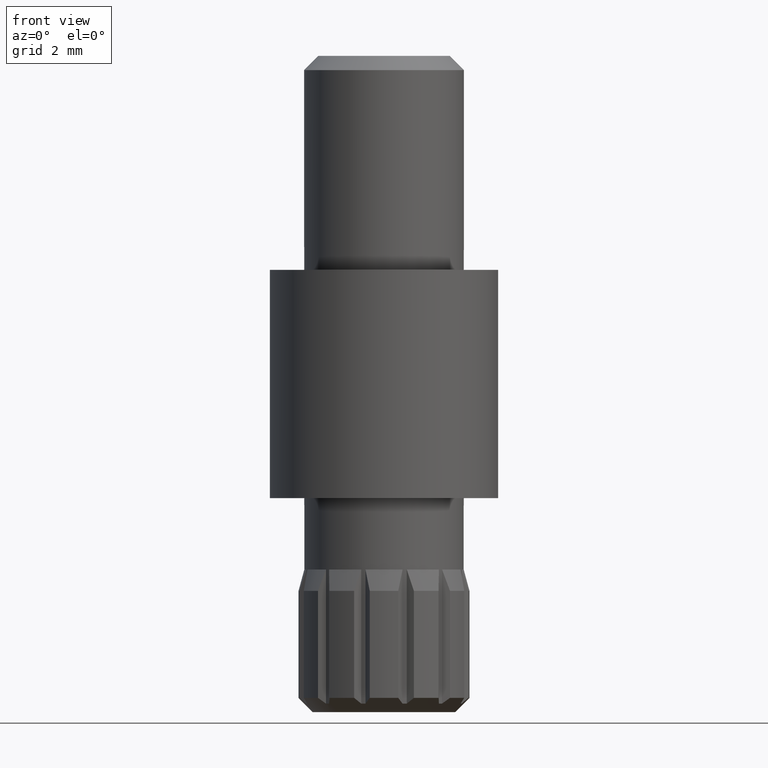
[diagram: clean part render]
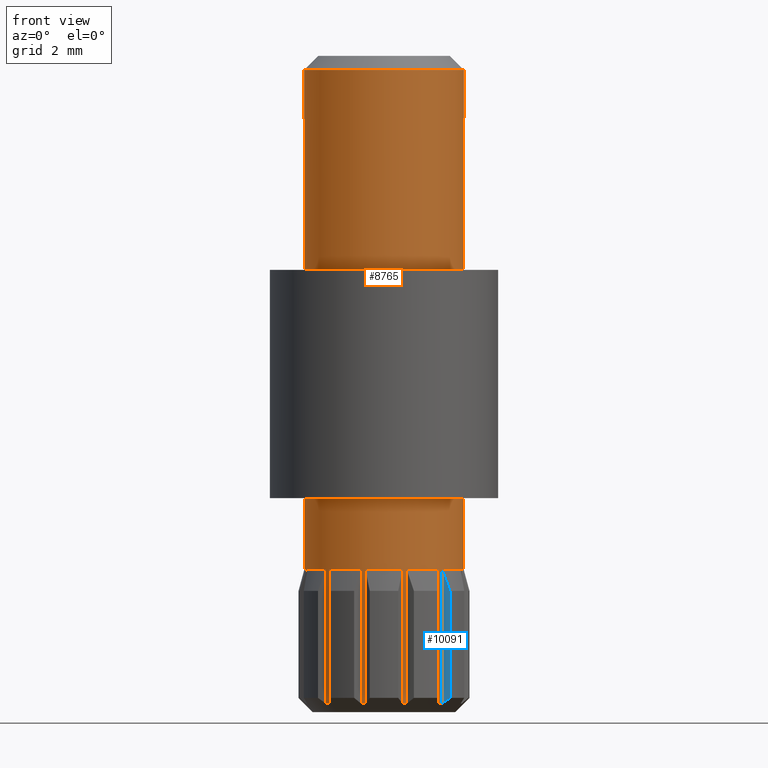
[diagram: same view with the hole feature highlighted: cylindrical wall and planar end face, labeled with their STEP entity ids]
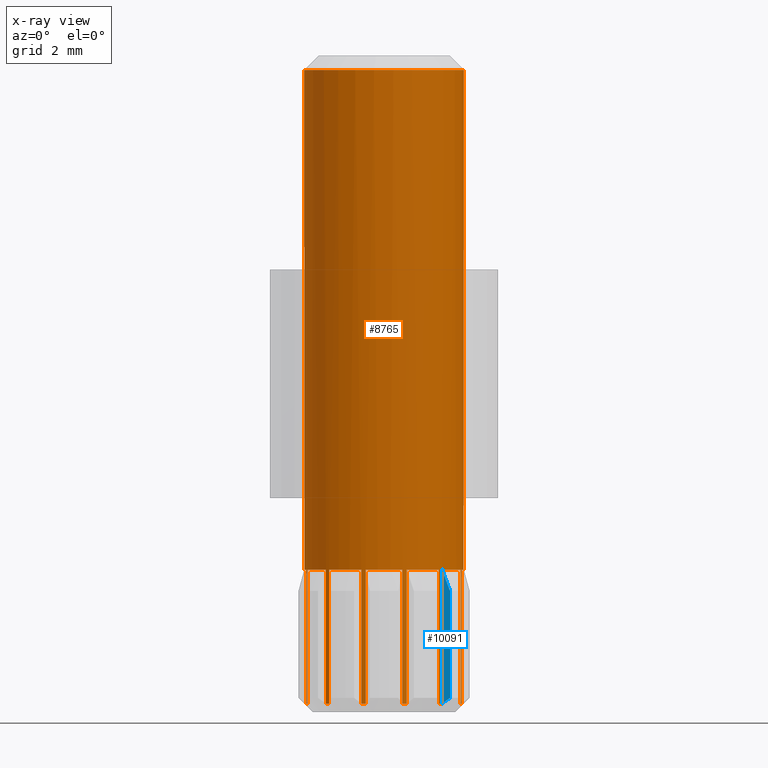
[diagram: x-ray of the same camera — body ghosted, the hole faces saturated]
A machine part, front view. The highlighted faces form one hole feature of diameter 5.6 mm: the cylindrical wall (entity #8765, orange) and its adjacent planar end face (entity #10091, blue) — they share a circular edge in the B-rep.
The next image is the same camera in x-ray (body ghosted, the hole faces saturated) — the bore reads through the body.
Wall:
#1 = DIRECTION ( 'NONE',  ( 0.000000000000000000, 0.000000000000000000, -1.000000000000000000 ) ) ;
#67 = CIRCLE ( 'NONE', #4636, 2.800000000000000266 ) ;
#89 = CIRCLE ( 'NONE', #7085, 2.799999999999999822 ) ;
#91 = CARTESIAN_POINT ( 'NONE',  ( 2.033627779027463056, 1.924670895599512654, 0.2999999999999999334 ) ) ;
#99 = EDGE_CURVE ( 'NONE', #7719, #5353, #12352, .T. ) ;
#157 = EDGE_CURVE ( 'NONE', #7042, #8808, #8983, .T. ) ;
#220 = VERTEX_POINT ( 'NONE', #11610 ) ;
#229 = CARTESIAN_POINT ( 'NONE',  ( 2.723508766279262083, -0.6500000000000094591, 5.000000000000000000 ) ) ;
#250 = EDGE_CURVE ( 'NONE', #10229, #11445, #11405, .T. ) ;
#261 = VECTOR ( 'NONE', #2143, 1000.000000000000000 ) ;
#323 = DIRECTION ( 'NONE',  ( 0.000000000000000000, 0.000000000000000000, -1.000000000000000000 ) ) ;
#375 = EDGE_CURVE ( 'NONE', #5924, #1440, #1109, .T. ) ;
#419 = CARTESIAN_POINT ( 'NONE',  ( 0.000000000000000000, 0.000000000000000000, 0.2999999999999996003 ) ) ;
#421 = EDGE_LOOP ( 'NONE', ( #3084, #4046, #4023, #8956, #8228, #3038, #11556, #12457, #7675, #3851, #4626, #10936, #937, #11867, #8384, #12649, #2769, #12290, #5379, #3086, #4774, #3941, #5714, #10811, #9722, #11007, #6330, #3877, #740, #12470, #4002, #1245, #9878, #6591, #10893, #12338, #2939, #3257, #6166, #2324, #8314, #5221, #7893, #1391, #2811, #6482, #5609, #669 ) ) ;
#493 = VECTOR ( 'NONE', #4657, 1000.000000000000000 ) ;
#543 = CARTESIAN_POINT ( 'NONE',  ( 2.033627779027462612, 1.924670895599512432, 5.000000000000000888 ) ) ;
#590 = CARTESIAN_POINT ( 'NONE',  ( 0.000000000000000000, 0.000000000000000000, 5.000000000000000000 ) ) ;
#620 = DIRECTION ( 'NONE',  ( 0.000000000000000000, 0.000000000000000000, -1.000000000000000000 ) ) ;
#634 = CARTESIAN_POINT ( 'NONE',  ( 2.723508766279266524, 0.6499999999999904743, 5.000000000000000000 ) ) ;
#659 = VERTEX_POINT ( 'NONE', #10993 ) ;
#669 = ORIENTED_EDGE ( 'NONE', *, *, #7131, .T. ) ;
#737 = CARTESIAN_POINT ( 'NONE',  ( 2.723508766279262527, -0.6500000000000095701, 5.000000000000000000 ) ) ;
#738 = AXIS2_PLACEMENT_3D ( 'NONE', #1925, #1493, #12843 ) ;
#740 = ORIENTED_EDGE ( 'NONE', *, *, #250, .F. ) ;
#747 = CIRCLE ( 'NONE', #7396, 2.799999999999999822 ) ;
#755 = CARTESIAN_POINT ( 'NONE',  ( 0.6499999999999999112, 2.723508766279263860, 0.2999999999999996003 ) ) ;
#817 = AXIS2_PLACEMENT_3D ( 'NONE', #9861, #11925, #6991 ) ;
#820 = DIRECTION ( 'NONE',  ( 0.000000000000000000, 0.000000000000000000, 1.000000000000000000 ) ) ;
#871 = CARTESIAN_POINT ( 'NONE',  ( 2.683627779027459859, 0.7988378706797408801, 0.2999999999999996003 ) ) ;
#937 = ORIENTED_EDGE ( 'NONE', *, *, #3856, .F. ) ;
#974 = CARTESIAN_POINT ( 'NONE',  ( 0.000000000000000000, 0.000000000000000000, 0.2999999999999996003 ) ) ;
#1019 = CARTESIAN_POINT ( 'NONE',  ( -2.033627779027476379, -1.924670895599498444, 5.000000000000000000 ) ) ;
#1041 = EDGE_LOOP ( 'NONE', ( #6382 ) ) ;
#1109 = CIRCLE ( 'NONE', #12490, 2.799999999999999822 ) ;
#1164 = CARTESIAN_POINT ( 'NONE',  ( -1.924670895599491116, 2.033627779027482596, 0.2999999999999996003 ) ) ;
#1174 = LINE ( 'NONE', #2889, #9356 ) ;
#1184 = VERTEX_POINT ( 'NONE', #12652 ) ;
#1187 = DIRECTION ( 'NONE',  ( 0.000000000000000000, 0.000000000000000000, 1.000000000000000000 ) ) ;
#1245 = ORIENTED_EDGE ( 'NONE', *, *, #11981, .T. ) ;
#1311 = CARTESIAN_POINT ( 'NONE',  ( 0.000000000000000000, 0.000000000000000000, 5.000000000000000000 ) ) ;
#1319 = CARTESIAN_POINT ( 'NONE',  ( -2.033627779027475935, -1.924670895599498222, 5.000000000000000888 ) ) ;
#1368 = DIRECTION ( 'NONE',  ( 0.000000000000000000, 0.000000000000000000, -1.000000000000000000 ) ) ;
#1391 = ORIENTED_EDGE ( 'NONE', *, *, #7296, .T. ) ;
#1405 = AXIS2_PLACEMENT_3D ( 'NONE', #4610, #820, #10665 ) ;
#1424 = CARTESIAN_POINT ( 'NONE',  ( 1.924670895599520426, 2.033627779027456395, 5.000000000000000000 ) ) ;
#1434 = AXIS2_PLACEMENT_3D ( 'NONE', #5862, #4818, #12703 ) ;
#1440 = VERTEX_POINT ( 'NONE', #4155 ) ;
#1493 = DIRECTION ( 'NONE',  ( 0.000000000000000000, 0.000000000000000000, 1.000000000000000000 ) ) ;
#1641 = VERTEX_POINT ( 'NONE', #543 ) ;
#1646 = LINE ( 'NONE', #2727, #6269 ) ;
#1661 = DIRECTION ( 'NONE',  ( 0.000000000000000000, 0.000000000000000000, -1.000000000000000000 ) ) ;
#1745 = CARTESIAN_POINT ( 'NONE',  ( 0.000000000000000000, 0.000000000000000000, 0.2999999999999996003 ) ) ;
#1792 = DIRECTION ( 'NONE',  ( 1.000000000000000000, 0.000000000000000000, 0.000000000000000000 ) ) ;
#1863 = VERTEX_POINT ( 'NONE', #11188 ) ;
#1892 = EDGE_CURVE ( 'NONE', #10642, #1641, #67, .T. ) ;
#1918 = DIRECTION ( 'NONE',  ( 0.4999999999999918954, -0.8660254037844432595, 0.000000000000000000 ) ) ;
#1925 = CARTESIAN_POINT ( 'NONE',  ( 0.000000000000000000, 0.000000000000000000, 5.000000000000000000 ) ) ;
#1967 = EDGE_CURVE ( 'NONE', #2530, #8374, #2429, .T. ) ;
#1972 = DIRECTION ( 'NONE',  ( -1.000000000000000000, 0.000000000000000000, 0.000000000000000000 ) ) ;
#1984 = DIRECTION ( 'NONE',  ( 0.000000000000000000, 0.000000000000000000, 1.000000000000000000 ) ) ;
#2049 = CARTESIAN_POINT ( 'NONE',  ( -2.033627779027435523, 1.924670895599541076, 0.2999999999999996003 ) ) ;
#2065 = CARTESIAN_POINT ( 'NONE',  ( -1.924670895599533749, -2.033627779027442628, 0.2999999999999996003 ) ) ;
#2143 = DIRECTION ( 'NONE',  ( 0.000000000000000000, 0.000000000000000000, -1.000000000000000000 ) ) ;
#2167 = CIRCLE ( 'NONE', #12059, 2.799999999999999822 ) ;
#2207 = CARTESIAN_POINT ( 'NONE',  ( 1.924670895599505327, -2.033627779027469273, 5.000000000000000888 ) ) ;
#2229 = LINE ( 'NONE', #7517, #4834 ) ;
#2241 = CYLINDRICAL_SURFACE ( 'NONE', #4530, 2.799999999999999822 ) ;
#2249 = CARTESIAN_POINT ( 'NONE',  ( 0.7988378706797502060, 2.683627779027457194, 5.000000000000000000 ) ) ;
#2273 = VECTOR ( 'NONE', #4559, 1000.000000000000000 ) ;
#2286 = EDGE_CURVE ( 'NONE', #1641, #12443, #1646, .T. ) ;
#2324 = ORIENTED_EDGE ( 'NONE', *, *, #8844, .T. ) ;
#2361 = CARTESIAN_POINT ( 'NONE',  ( -2.683627779027448756, 0.7988378706797785167, 5.000000000000000888 ) ) ;
#2364 = CARTESIAN_POINT ( 'NONE',  ( -0.7988378706797133466, 2.683627779027469185, 5.000000000000000000 ) ) ;
#2374 = VECTOR ( 'NONE', #4475, 1000.000000000000000 ) ;
#2400 = VERTEX_POINT ( 'NONE', #2065 ) ;
#2422 = EDGE_CURVE ( 'NONE', #3615, #7366, #3396, .T. ) ;
#2429 = CIRCLE ( 'NONE', #7032, 2.800000000000000266 ) ;
#2492 = VERTEX_POINT ( 'NONE', #2364 ) ;
#2514 = CIRCLE ( 'NONE', #2703, 2.799999999999999822 ) ;
#2528 = CARTESIAN_POINT ( 'NONE',  ( 2.033627779027448845, -1.924670895599526865, 0.2999999999999996003 ) ) ;
#2530 = VERTEX_POINT ( 'NONE', #9363 ) ;
#2623 = DIRECTION ( 'NONE',  ( 0.5000000000000039968, 0.8660254037844363761, 0.000000000000000000 ) ) ;
#2703 = AXIS2_PLACEMENT_3D ( 'NONE', #11681, #5794, #6853 ) ;
#2706 = CARTESIAN_POINT ( 'NONE',  ( 2.683627779027454086, -0.7988378706797595319, 5.000000000000000888 ) ) ;
#2727 = CARTESIAN_POINT ( 'NONE',  ( 2.033627779027463056, 1.924670895599512654, 5.000000000000000000 ) ) ;
#2756 = CIRCLE ( 'NONE', #6195, 2.799999999999999822 ) ;
#2769 = ORIENTED_EDGE ( 'NONE', *, *, #9635, .F. ) ;
#2789 = CIRCLE ( 'NONE', #7156, 2.800000000000000711 ) ;
#2802 = CARTESIAN_POINT ( 'NONE',  ( 2.683627779027459859, 0.7988378706797408801, 5.000000000000000000 ) ) ;
#2811 = ORIENTED_EDGE ( 'NONE', *, *, #7422, .F. ) ;
#2855 = CARTESIAN_POINT ( 'NONE',  ( 0.000000000000000000, 0.000000000000000000, 5.000000000000000000 ) ) ;
#2885 = AXIS2_PLACEMENT_3D ( 'NONE', #590, #8428, #9431 ) ;
#2889 = CARTESIAN_POINT ( 'NONE',  ( -0.7988378706797127915, 2.683627779027468296, 5.000000000000000000 ) ) ;
#2897 = LINE ( 'NONE', #4364, #5981 ) ;
#2917 = VERTEX_POINT ( 'NONE', #1164 ) ;
#2939 = ORIENTED_EDGE ( 'NONE', *, *, #12286, .F. ) ;
#3038 = ORIENTED_EDGE ( 'NONE', *, *, #9193, .T. ) ;
#3046 = EDGE_CURVE ( 'NONE', #10180, #6872, #12013, .T. ) ;
#3084 = ORIENTED_EDGE ( 'NONE', *, *, #5153, .F. ) ;
#3086 = ORIENTED_EDGE ( 'NONE', *, *, #157, .T. ) ;
#3102 = VERTEX_POINT ( 'NONE', #11247 ) ;
#3123 = CARTESIAN_POINT ( 'NONE',  ( 0.6500000000000000222, -2.723508766279264304, 5.000000000000000888 ) ) ;
#3146 = CARTESIAN_POINT ( 'NONE',  ( -1.924670895599491116, 2.033627779027482596, 5.000000000000000888 ) ) ;
#3207 = DIRECTION ( 'NONE',  ( 0.000000000000000000, 0.000000000000000000, -1.000000000000000000 ) ) ;
#3211 = AXIS2_PLACEMENT_3D ( 'NONE', #1745, #12677, #11552 ) ;
#3240 = DIRECTION ( 'NONE',  ( 0.000000000000000000, 0.000000000000000000, -1.000000000000000000 ) ) ;
#3257 = ORIENTED_EDGE ( 'NONE', *, *, #7612, .T. ) ;
#3302 = LINE ( 'NONE', #5451, #10104 ) ;
#3305 = CARTESIAN_POINT ( 'NONE',  ( 0.000000000000000000, 0.000000000000000000, 0.2999999999999996003 ) ) ;
#3396 = LINE ( 'NONE', #1019, #4450 ) ;
#3483 = DIRECTION ( 'NONE',  ( 1.000000000000000000, 0.000000000000000000, 0.000000000000000000 ) ) ;
#3497 = CARTESIAN_POINT ( 'NONE',  ( 0.6500000000000000222, 2.723508766279264304, 5.000000000000000000 ) ) ;
#3530 = DIRECTION ( 'NONE',  ( 0.000000000000000000, 0.000000000000000000, -1.000000000000000000 ) ) ;
#3615 = VERTEX_POINT ( 'NONE', #1319 ) ;
#3624 = CARTESIAN_POINT ( 'NONE',  ( -2.683627779027448756, 0.7988378706797784057, 5.000000000000000000 ) ) ;
#3627 = EDGE_CURVE ( 'NONE', #6887, #2917, #2897, .T. ) ;
#3633 = EDGE_CURVE ( 'NONE', #10229, #9302, #8606, .T. ) ;
#3647 = DIRECTION ( 'NONE',  ( 1.000000000000000000, 0.000000000000000000, 0.000000000000000000 ) ) ;
#3662 = EDGE_CURVE ( 'NONE', #11621, #1184, #8957, .T. ) ;
#3832 = CIRCLE ( 'NONE', #3211, 2.799999999999999822 ) ;
#3840 = DIRECTION ( 'NONE',  ( 0.000000000000000000, 0.000000000000000000, 1.000000000000000000 ) ) ;
#3851 = ORIENTED_EDGE ( 'NONE', *, *, #1967, .T. ) ;
#3856 = EDGE_CURVE ( 'NONE', #11241, #1440, #12395, .T. ) ;
#3865 = DIRECTION ( 'NONE',  ( 0.000000000000000000, 0.000000000000000000, -1.000000000000000000 ) ) ;
#3877 = ORIENTED_EDGE ( 'NONE', *, *, #8772, .T. ) ;
#3901 = DIRECTION ( 'NONE',  ( 0.000000000000000000, 0.000000000000000000, -1.000000000000000000 ) ) ;
#3903 = CARTESIAN_POINT ( 'NONE',  ( 0.7988378706797502060, 2.683627779027457194, 5.000000000000000888 ) ) ;
#3938 = CIRCLE ( 'NONE', #2885, 2.800000000000000711 ) ;
#3941 = ORIENTED_EDGE ( 'NONE', *, *, #3662, .T. ) ;
#4002 = ORIENTED_EDGE ( 'NONE', *, *, #8519, .T. ) ;
#4023 = ORIENTED_EDGE ( 'NONE', *, *, #2422, .T. ) ;
#4046 = ORIENTED_EDGE ( 'NONE', *, *, #7343, .T. ) ;
#4088 = CARTESIAN_POINT ( 'NONE',  ( -2.723508766279271409, -0.6499999999999714895, 0.2999999999999998779 ) ) ;
#4145 = EDGE_CURVE ( 'NONE', #8796, #7815, #8867, .T. ) ;
#4155 = CARTESIAN_POINT ( 'NONE',  ( 0.7988378706797313322, -2.683627779027462523, 0.2999999999999996003 ) ) ;
#4157 = CARTESIAN_POINT ( 'NONE',  ( 0.7988378706797500950, 2.683627779027457194, 0.2999999999999997669 ) ) ;
#4364 = CARTESIAN_POINT ( 'NONE',  ( -1.924670895599491116, 2.033627779027482596, 5.000000000000000000 ) ) ;
#4450 = VECTOR ( 'NONE', #10799, 1000.000000000000000 ) ;
#4475 = DIRECTION ( 'NONE',  ( 0.000000000000000000, 0.000000000000000000, -1.000000000000000000 ) ) ;
#4488 = EDGE_CURVE ( 'NONE', #1184, #7101, #8712, .T. ) ;
#4505 = CARTESIAN_POINT ( 'NONE',  ( 0.000000000000000000, 0.000000000000000000, 0.2999999999999996003 ) ) ;
#4518 = CIRCLE ( 'NONE', #1405, 2.799999999999999822 ) ;
#4530 = AXIS2_PLACEMENT_3D ( 'NONE', #10425, #11443, #5503 ) ;
#4553 = CARTESIAN_POINT ( 'NONE',  ( -2.683627779027466076, -0.7988378706797225615, 5.000000000000000000 ) ) ;
#4555 = VECTOR ( 'NONE', #4745, 1000.000000000000000 ) ;
#4559 = DIRECTION ( 'NONE',  ( 0.000000000000000000, 0.000000000000000000, -1.000000000000000000 ) ) ;
#4569 = EDGE_CURVE ( 'NONE', #220, #659, #8398, .T. ) ;
#4610 = CARTESIAN_POINT ( 'NONE',  ( 0.000000000000000000, 0.000000000000000000, 0.2999999999999996003 ) ) ;
#4626 = ORIENTED_EDGE ( 'NONE', *, *, #5271, .T. ) ;
#4636 = AXIS2_PLACEMENT_3D ( 'NONE', #4716, #10724, #4849 ) ;
#4657 = DIRECTION ( 'NONE',  ( 0.000000000000000000, 0.000000000000000000, -1.000000000000000000 ) ) ;
#4710 = CARTESIAN_POINT ( 'NONE',  ( 0.000000000000000000, 0.000000000000000000, 5.000000000000000000 ) ) ;
#4716 = CARTESIAN_POINT ( 'NONE',  ( 0.000000000000000000, 0.000000000000000000, 5.000000000000000000 ) ) ;
#4745 = DIRECTION ( 'NONE',  ( 0.000000000000000000, 0.000000000000000000, -1.000000000000000000 ) ) ;
#4764 = CARTESIAN_POINT ( 'NONE',  ( -0.6499999999999999112, -2.723508766279263860, 0.2999999999999996003 ) ) ;
#4774 = ORIENTED_EDGE ( 'NONE', *, *, #10935, .F. ) ;
#4818 = DIRECTION ( 'NONE',  ( 0.000000000000000000, 0.000000000000000000, 1.000000000000000000 ) ) ;
#4834 = VECTOR ( 'NONE', #8536, 1000.000000000000000 ) ;
#4848 = CARTESIAN_POINT ( 'NONE',  ( 0.6500000000000000222, -2.723508766279264304, 5.000000000000000000 ) ) ;
#4849 = DIRECTION ( 'NONE',  ( -0.4999999999999980016, 0.8660254037844399289, 0.000000000000000000 ) ) ;
#4881 = DIRECTION ( 'NONE',  ( 1.000000000000000000, 0.000000000000000000, 0.000000000000000000 ) ) ;
#4971 = CARTESIAN_POINT ( 'NONE',  ( -2.723508766279257198, 0.6500000000000284439, 5.000000000000000000 ) ) ;
#5000 = CARTESIAN_POINT ( 'NONE',  ( 0.7988378706797321094, -2.683627779027463855, 5.000000000000000000 ) ) ;
#5078 = CARTESIAN_POINT ( 'NONE',  ( 1.924670895599505327, -2.033627779027469273, 0.2999999999999997669 ) ) ;
#5097 = CARTESIAN_POINT ( 'NONE',  ( 0.000000000000000000, 0.000000000000000000, 5.000000000000000000 ) ) ;
#5102 = CARTESIAN_POINT ( 'NONE',  ( -2.033627779027436411, 1.924670895599542186, 5.000000000000000000 ) ) ;
#5135 = VERTEX_POINT ( 'NONE', #5668 ) ;
#5153 = EDGE_CURVE ( 'NONE', #6267, #6806, #6502, .T. ) ;
#5211 = DIRECTION ( 'NONE',  ( 0.000000000000000000, 0.000000000000000000, 1.000000000000000000 ) ) ;
#5221 = ORIENTED_EDGE ( 'NONE', *, *, #12255, .T. ) ;
#5271 = EDGE_CURVE ( 'NONE', #8374, #5924, #8260, .T. ) ;
#5328 = LINE ( 'NONE', #11263, #8557 ) ;
#5353 = VERTEX_POINT ( 'NONE', #6138 ) ;
#5363 = DIRECTION ( 'NONE',  ( 0.000000000000000000, 0.000000000000000000, -1.000000000000000000 ) ) ;
#5379 = ORIENTED_EDGE ( 'NONE', *, *, #11096, .T. ) ;
#5451 = CARTESIAN_POINT ( 'NONE',  ( -2.723508766279271409, -0.6499999999999714895, 5.000000000000000000 ) ) ;
#5465 = EDGE_CURVE ( 'NONE', #7815, #3102, #5328, .T. ) ;
#5502 = CIRCLE ( 'NONE', #11901, 2.800000000000000266 ) ;
#5503 = DIRECTION ( 'NONE',  ( -1.000000000000000000, 0.000000000000000000, 0.000000000000000000 ) ) ;
#5609 = ORIENTED_EDGE ( 'NONE', *, *, #9238, .T. ) ;
#5642 = CARTESIAN_POINT ( 'NONE',  ( 2.683627779027454974, -0.7988378706797597539, 5.000000000000000000 ) ) ;
#5663 = CARTESIAN_POINT ( 'NONE',  ( 0.000000000000000000, 0.000000000000000000, 0.2999999999999996003 ) ) ;
#5668 = CARTESIAN_POINT ( 'NONE',  ( 2.033627779027449289, -1.924670895599527531, 5.000000000000000000 ) ) ;
#5675 = CARTESIAN_POINT ( 'NONE',  ( 0.000000000000000000, 0.000000000000000000, 0.2999999999999996003 ) ) ;
#5694 = VERTEX_POINT ( 'NONE', #10422 ) ;
#5714 = ORIENTED_EDGE ( 'NONE', *, *, #4488, .T. ) ;
#5747 = VERTEX_POINT ( 'NONE', #12792 ) ;
#5794 = DIRECTION ( 'NONE',  ( 0.000000000000000000, 0.000000000000000000, 1.000000000000000000 ) ) ;
#5827 = CARTESIAN_POINT ( 'NONE',  ( -0.7988378706797689688, -2.683627779027451865, 5.000000000000000000 ) ) ;
#5862 = CARTESIAN_POINT ( 'NONE',  ( 0.000000000000000000, 0.000000000000000000, 5.000000000000000000 ) ) ;
#5924 = VERTEX_POINT ( 'NONE', #11607 ) ;
#5981 = VECTOR ( 'NONE', #3207, 1000.000000000000000 ) ;
#6037 = CARTESIAN_POINT ( 'NONE',  ( 0.7988378706797314432, -2.683627779027462967, 5.000000000000000000 ) ) ;
#6138 = CARTESIAN_POINT ( 'NONE',  ( -2.723508766279270965, -0.6499999999999713785, 5.000000000000000888 ) ) ;
#6166 = ORIENTED_EDGE ( 'NONE', *, *, #3627, .T. ) ;
#6195 = AXIS2_PLACEMENT_3D ( 'NONE', #5663, #9786, #8656 ) ;
#6231 = FACE_OUTER_BOUND ( 'NONE', #421, .T. ) ;
#6255 = CARTESIAN_POINT ( 'NONE',  ( 2.683627779027460747, 0.7988378706797413242, 5.000000000000000000 ) ) ;
#6267 = VERTEX_POINT ( 'NONE', #4553 ) ;
#6269 = VECTOR ( 'NONE', #3865, 1000.000000000000000 ) ;
#6301 = EDGE_CURVE ( 'NONE', #5135, #8209, #2789, .T. ) ;
#6318 = CARTESIAN_POINT ( 'NONE',  ( 0.000000000000000000, 0.000000000000000000, 5.000000000000000000 ) ) ;
#6330 = ORIENTED_EDGE ( 'NONE', *, *, #2286, .T. ) ;
#6348 = CARTESIAN_POINT ( 'NONE',  ( 2.723508766279266524, 0.6499999999999904743, 0.2999999999999997113 ) ) ;
#6382 = ORIENTED_EDGE ( 'NONE', *, *, #10486, .T. ) ;
#6414 = EDGE_CURVE ( 'NONE', #7101, #10335, #12208, .T. ) ;
#6482 = ORIENTED_EDGE ( 'NONE', *, *, #99, .T. ) ;
#6494 = VERTEX_POINT ( 'NONE', #7050 ) ;
#6502 = LINE ( 'NONE', #6646, #10238 ) ;
#6524 = DIRECTION ( 'NONE',  ( 1.000000000000000000, 0.000000000000000000, 0.000000000000000000 ) ) ;
#6533 = AXIS2_PLACEMENT_3D ( 'NONE', #10382, #9391, #3483 ) ;
#6552 = DIRECTION ( 'NONE',  ( 0.000000000000000000, 0.000000000000000000, -1.000000000000000000 ) ) ;
#6591 = ORIENTED_EDGE ( 'NONE', *, *, #4145, .T. ) ;
#6640 = EDGE_CURVE ( 'NONE', #3102, #6494, #747, .T. ) ;
#6646 = CARTESIAN_POINT ( 'NONE',  ( -2.683627779027465632, -0.7988378706797221174, 5.000000000000000000 ) ) ;
#6752 = VERTEX_POINT ( 'NONE', #4764 ) ;
#6806 = VERTEX_POINT ( 'NONE', #8794 ) ;
#6819 = CARTESIAN_POINT ( 'NONE',  ( 0.000000000000000000, 0.000000000000000000, 0.2999999999999996003 ) ) ;
#6853 = DIRECTION ( 'NONE',  ( -0.5000000000000101030, -0.8660254037844328234, 0.000000000000000000 ) ) ;
#6860 = LINE ( 'NONE', #2802, #11799 ) ;
#6872 = VERTEX_POINT ( 'NONE', #5078 ) ;
#6887 = VERTEX_POINT ( 'NONE', #3146 ) ;
#6991 = DIRECTION ( 'NONE',  ( 1.000000000000000000, 0.000000000000000000, 0.000000000000000000 ) ) ;
#7032 = AXIS2_PLACEMENT_3D ( 'NONE', #9054, #11831, #10979 ) ;
#7042 = VERTEX_POINT ( 'NONE', #9056 ) ;
#7043 = LINE ( 'NONE', #229, #11203 ) ;
#7050 = CARTESIAN_POINT ( 'NONE',  ( -0.7988378706797126805, 2.683627779027468296, 0.2999999999999998224 ) ) ;
#7085 = AXIS2_PLACEMENT_3D ( 'NONE', #3305, #12185, #11131 ) ;
#7101 = VERTEX_POINT ( 'NONE', #6348 ) ;
#7131 = EDGE_CURVE ( 'NONE', #11888, #6806, #2167, .T. ) ;
#7156 = AXIS2_PLACEMENT_3D ( 'NONE', #9672, #7475, #2623 ) ;
#7169 = DIRECTION ( 'NONE',  ( 0.8660254037844415942, 0.4999999999999950040, 0.000000000000000000 ) ) ;
#7241 = CARTESIAN_POINT ( 'NONE',  ( 1.924670895599505327, -2.033627779027469273, 5.000000000000000000 ) ) ;
#7276 = LINE ( 'NONE', #3497, #2374 ) ;
#7286 = DIRECTION ( 'NONE',  ( 0.000000000000000000, 0.000000000000000000, 1.000000000000000000 ) ) ;
#7296 = EDGE_CURVE ( 'NONE', #10782, #5694, #3832, .T. ) ;
#7343 = EDGE_CURVE ( 'NONE', #6267, #3615, #7997, .T. ) ;
#7363 = DIRECTION ( 'NONE',  ( 0.000000000000000000, 0.000000000000000000, 1.000000000000000000 ) ) ;
#7366 = VERTEX_POINT ( 'NONE', #10578 ) ;
#7396 = AXIS2_PLACEMENT_3D ( 'NONE', #4505, #8440, #6524 ) ;
#7422 = EDGE_CURVE ( 'NONE', #7719, #5694, #8785, .T. ) ;
#7475 = DIRECTION ( 'NONE',  ( 0.000000000000000000, 0.000000000000000000, 1.000000000000000000 ) ) ;
#7517 = CARTESIAN_POINT ( 'NONE',  ( 2.033627779027449289, -1.924670895599527087, 5.000000000000000000 ) ) ;
#7527 = CARTESIAN_POINT ( 'NONE',  ( -2.683627779027448756, 0.7988378706797785167, 0.2999999999999998224 ) ) ;
#7612 = EDGE_CURVE ( 'NONE', #2492, #6887, #11844, .T. ) ;
#7638 = DIRECTION ( 'NONE',  ( 0.000000000000000000, 0.000000000000000000, 1.000000000000000000 ) ) ;
#7671 = DIRECTION ( 'NONE',  ( 0.000000000000000000, 0.000000000000000000, 1.000000000000000000 ) ) ;
#7675 = ORIENTED_EDGE ( 'NONE', *, *, #10599, .F. ) ;
#7719 = VERTEX_POINT ( 'NONE', #10527 ) ;
#7770 = FACE_OUTER_BOUND ( 'NONE', #1041, .T. ) ;
#7792 = DIRECTION ( 'NONE',  ( 0.000000000000000000, 0.000000000000000000, -1.000000000000000000 ) ) ;
#7798 = DIRECTION ( 'NONE',  ( 0.000000000000000000, 0.000000000000000000, 1.000000000000000000 ) ) ;
#7815 = VERTEX_POINT ( 'NONE', #11724 ) ;
#7893 = ORIENTED_EDGE ( 'NONE', *, *, #10801, .T. ) ;
#7945 = VECTOR ( 'NONE', #3240, 1000.000000000000000 ) ;
#7949 = EDGE_CURVE ( 'NONE', #1863, #2400, #12762, .T. ) ;
#7997 = CIRCLE ( 'NONE', #11125, 2.800000000000000711 ) ;
#8190 = CARTESIAN_POINT ( 'NONE',  ( 1.924670895599519538, 2.033627779027455507, 0.2999999999999996003 ) ) ;
#8209 = VERTEX_POINT ( 'NONE', #2706 ) ;
#8228 = ORIENTED_EDGE ( 'NONE', *, *, #7949, .F. ) ;
#8260 = LINE ( 'NONE', #4848, #11326 ) ;
#8310 = DIRECTION ( 'NONE',  ( -1.047444401652940164E-14, -1.000000000000000000, 0.000000000000000000 ) ) ;
#8314 = ORIENTED_EDGE ( 'NONE', *, *, #8750, .F. ) ;
#8356 = EDGE_CURVE ( 'NONE', #10642, #10335, #6860, .T. ) ;
#8374 = VERTEX_POINT ( 'NONE', #3123 ) ;
#8384 = ORIENTED_EDGE ( 'NONE', *, *, #3046, .T. ) ;
#8394 = DIRECTION ( 'NONE',  ( 1.000000000000000000, 0.000000000000000000, 0.000000000000000000 ) ) ;
#8398 = LINE ( 'NONE', #5827, #9478 ) ;
#8428 = DIRECTION ( 'NONE',  ( 0.000000000000000000, 0.000000000000000000, 1.000000000000000000 ) ) ;
#8440 = DIRECTION ( 'NONE',  ( 0.000000000000000000, 0.000000000000000000, 1.000000000000000000 ) ) ;
#8456 = VERTEX_POINT ( 'NONE', #5102 ) ;
#8458 = VECTOR ( 'NONE', #3901, 1000.000000000000000 ) ;
#8476 = VERTEX_POINT ( 'NONE', #2049 ) ;
#8519 = EDGE_CURVE ( 'NONE', #9302, #9448, #9354, .T. ) ;
#8536 = DIRECTION ( 'NONE',  ( 0.000000000000000000, 0.000000000000000000, -1.000000000000000000 ) ) ;
#8557 = VECTOR ( 'NONE', #5363, 1000.000000000000000 ) ;
#8606 = CIRCLE ( 'NONE', #738, 2.800000000000000711 ) ;
#8613 = CARTESIAN_POINT ( 'NONE',  ( 2.723508766279261639, -0.6500000000000093481, 0.2999999999999996003 ) ) ;
#8656 = DIRECTION ( 'NONE',  ( 1.000000000000000000, 0.000000000000000000, 0.000000000000000000 ) ) ;
#8712 = LINE ( 'NONE', #634, #493 ) ;
#8750 = EDGE_CURVE ( 'NONE', #8456, #8476, #10115, .T. ) ;
#8765 = ADVANCED_FACE ( 'NONE', ( #6231, #7770 ), #2241, .T. ) ;
#8772 = EDGE_CURVE ( 'NONE', #12443, #11445, #11165, .T. ) ;
#8785 = LINE ( 'NONE', #4971, #8458 ) ;
#8794 = CARTESIAN_POINT ( 'NONE',  ( -2.683627779027465632, -0.7988378706797221174, 0.2999999999999996003 ) ) ;
#8796 = VERTEX_POINT ( 'NONE', #9624 ) ;
#8808 = VERTEX_POINT ( 'NONE', #8613 ) ;
#8844 = EDGE_CURVE ( 'NONE', #2917, #8476, #12263, .T. ) ;
#8867 = CIRCLE ( 'NONE', #10028, 2.800000000000000266 ) ;
#8956 = ORIENTED_EDGE ( 'NONE', *, *, #10318, .T. ) ;
#8957 = CIRCLE ( 'NONE', #1434, 2.800000000000000266 ) ;
#8983 = CIRCLE ( 'NONE', #6533, 2.799999999999999822 ) ;
#9054 = CARTESIAN_POINT ( 'NONE',  ( 0.000000000000000000, 0.000000000000000000, 5.000000000000000000 ) ) ;
#9056 = CARTESIAN_POINT ( 'NONE',  ( 2.683627779027454974, -0.7988378706797596429, 0.3000000000000002665 ) ) ;
#9078 = DIRECTION ( 'NONE',  ( -0.8660254037844449249, -0.4999999999999889533, 0.000000000000000000 ) ) ;
#9193 = EDGE_CURVE ( 'NONE', #1863, #220, #3938, .T. ) ;
#9238 = EDGE_CURVE ( 'NONE', #5353, #11888, #3302, .T. ) ;
#9302 = VERTEX_POINT ( 'NONE', #3903 ) ;
#9354 = LINE ( 'NONE', #2249, #7945 ) ;
#9356 = VECTOR ( 'NONE', #1, 1000.000000000000000 ) ;
#9363 = CARTESIAN_POINT ( 'NONE',  ( -0.6500000000000001332, -2.723508766279265192, 5.000000000000000000 ) ) ;
#9391 = DIRECTION ( 'NONE',  ( 0.000000000000000000, 0.000000000000000000, 1.000000000000000000 ) ) ;
#9395 = VECTOR ( 'NONE', #1368, 1000.000000000000000 ) ;
#9431 = DIRECTION ( 'NONE',  ( 0.8660254037844344888, -0.5000000000000071054, 0.000000000000000000 ) ) ;
#9448 = VERTEX_POINT ( 'NONE', #4157 ) ;
#9478 = VECTOR ( 'NONE', #7792, 1000.000000000000000 ) ;
#9479 = CARTESIAN_POINT ( 'NONE',  ( 1.924670895599519760, 2.033627779027455951, 5.000000000000000000 ) ) ;
#9559 = DIRECTION ( 'NONE',  ( 0.000000000000000000, 0.000000000000000000, -1.000000000000000000 ) ) ;
#9624 = CARTESIAN_POINT ( 'NONE',  ( 0.6500000000000001332, 2.723508766279265192, 5.000000000000000000 ) ) ;
#9635 = EDGE_CURVE ( 'NONE', #5135, #12650, #2229, .T. ) ;
#9672 = CARTESIAN_POINT ( 'NONE',  ( 0.000000000000000000, 0.000000000000000000, 5.000000000000000000 ) ) ;
#9700 = LINE ( 'NONE', #3624, #2273 ) ;
#9722 = ORIENTED_EDGE ( 'NONE', *, *, #8356, .F. ) ;
#9771 = DIRECTION ( 'NONE',  ( 0.000000000000000000, 0.000000000000000000, -1.000000000000000000 ) ) ;
#9786 = DIRECTION ( 'NONE',  ( 0.000000000000000000, 0.000000000000000000, 1.000000000000000000 ) ) ;
#9838 = DIRECTION ( 'NONE',  ( 1.000000000000000000, 0.000000000000000000, 0.000000000000000000 ) ) ;
#9854 = EDGE_CURVE ( 'NONE', #8796, #12761, #7276, .T. ) ;
#9861 = CARTESIAN_POINT ( 'NONE',  ( 0.000000000000000000, 0.000000000000000000, 22.49999999999999645 ) ) ;
#9878 = ORIENTED_EDGE ( 'NONE', *, *, #9854, .F. ) ;
#10028 = AXIS2_PLACEMENT_3D ( 'NONE', #4710, #11875, #1972 ) ;
#10080 = CARTESIAN_POINT ( 'NONE',  ( -0.6500000000000000222, -2.723508766279264304, 5.000000000000000000 ) ) ;
#10104 = VECTOR ( 'NONE', #6552, 1000.000000000000000 ) ;
#10115 = LINE ( 'NONE', #10464, #10413 ) ;
#10119 = AXIS2_PLACEMENT_3D ( 'NONE', #6318, #7286, #8310 ) ;
#10180 = VERTEX_POINT ( 'NONE', #2207 ) ;
#10229 = VERTEX_POINT ( 'NONE', #1424 ) ;
#10238 = VECTOR ( 'NONE', #1661, 1000.000000000000000 ) ;
#10259 = VERTEX_POINT ( 'NONE', #2361 ) ;
#10318 = EDGE_CURVE ( 'NONE', #7366, #2400, #2756, .T. ) ;
#10335 = VERTEX_POINT ( 'NONE', #871 ) ;
#10340 = CIRCLE ( 'NONE', #12540, 2.799999999999999822 ) ;
#10368 = EDGE_CURVE ( 'NONE', #6872, #12650, #10340, .T. ) ;
#10382 = CARTESIAN_POINT ( 'NONE',  ( 0.000000000000000000, 0.000000000000000000, 0.2999999999999996003 ) ) ;
#10413 = VECTOR ( 'NONE', #3530, 1000.000000000000000 ) ;
#10422 = CARTESIAN_POINT ( 'NONE',  ( -2.723508766279257198, 0.6500000000000284439, 0.2999999999999996003 ) ) ;
#10425 = CARTESIAN_POINT ( 'NONE',  ( 0.000000000000000000, 0.000000000000000000, 23.00000000000000000 ) ) ;
#10464 = CARTESIAN_POINT ( 'NONE',  ( -2.033627779027435523, 1.924670895599541076, 5.000000000000000000 ) ) ;
#10486 = EDGE_CURVE ( 'NONE', #5747, #5747, #11706, .T. ) ;
#10527 = CARTESIAN_POINT ( 'NONE',  ( -2.723508766279258086, 0.6500000000000286660, 5.000000000000000000 ) ) ;
#10551 = VECTOR ( 'NONE', #11943, 1000.000000000000000 ) ;
#10578 = CARTESIAN_POINT ( 'NONE',  ( -2.033627779027476379, -1.924670895599498444, 0.2999999999999999334 ) ) ;
#10599 = EDGE_CURVE ( 'NONE', #2530, #6752, #12323, .T. ) ;
#10642 = VERTEX_POINT ( 'NONE', #6255 ) ;
#10665 = DIRECTION ( 'NONE',  ( 1.000000000000000000, 0.000000000000000000, 0.000000000000000000 ) ) ;
#10724 = DIRECTION ( 'NONE',  ( 0.000000000000000000, 0.000000000000000000, 1.000000000000000000 ) ) ;
#10729 = AXIS2_PLACEMENT_3D ( 'NONE', #12708, #3840, #9838 ) ;
#10782 = VERTEX_POINT ( 'NONE', #7527 ) ;
#10798 = VECTOR ( 'NONE', #9559, 1000.000000000000000 ) ;
#10799 = DIRECTION ( 'NONE',  ( 0.000000000000000000, 0.000000000000000000, -1.000000000000000000 ) ) ;
#10801 = EDGE_CURVE ( 'NONE', #10259, #10782, #9700, .T. ) ;
#10811 = ORIENTED_EDGE ( 'NONE', *, *, #6414, .T. ) ;
#10843 = DIRECTION ( 'NONE',  ( 0.000000000000000000, 0.000000000000000000, 1.000000000000000000 ) ) ;
#10891 = DIRECTION ( 'NONE',  ( 1.000000000000000000, 0.000000000000000000, 0.000000000000000000 ) ) ;
#10893 = ORIENTED_EDGE ( 'NONE', *, *, #5465, .T. ) ;
#10907 = AXIS2_PLACEMENT_3D ( 'NONE', #5675, #7638, #3647 ) ;
#10935 = EDGE_CURVE ( 'NONE', #11621, #8808, #7043, .T. ) ;
#10936 = ORIENTED_EDGE ( 'NONE', *, *, #375, .T. ) ;
#10979 = DIRECTION ( 'NONE',  ( 1.000000000000000000, 0.000000000000000000, 0.000000000000000000 ) ) ;
#10993 = CARTESIAN_POINT ( 'NONE',  ( -0.7988378706797689688, -2.683627779027451865, 0.3000000000000002109 ) ) ;
#11007 = ORIENTED_EDGE ( 'NONE', *, *, #1892, .T. ) ;
#11096 = EDGE_CURVE ( 'NONE', #8209, #7042, #11194, .T. ) ;
#11125 = AXIS2_PLACEMENT_3D ( 'NONE', #2855, #7798, #1918 ) ;
#11131 = DIRECTION ( 'NONE',  ( 1.000000000000000000, 0.000000000000000000, 0.000000000000000000 ) ) ;
#11165 = CIRCLE ( 'NONE', #10907, 2.799999999999999822 ) ;
#11188 = CARTESIAN_POINT ( 'NONE',  ( -1.924670895599534415, -2.033627779027443072, 5.000000000000000000 ) ) ;
#11194 = LINE ( 'NONE', #5642, #12427 ) ;
#11203 = VECTOR ( 'NONE', #323, 1000.000000000000000 ) ;
#11241 = VERTEX_POINT ( 'NONE', #5000 ) ;
#11247 = CARTESIAN_POINT ( 'NONE',  ( -0.6499999999999999112, 2.723508766279263860, 0.2999999999999996003 ) ) ;
#11263 = CARTESIAN_POINT ( 'NONE',  ( -0.6500000000000000222, 2.723508766279264304, 5.000000000000000000 ) ) ;
#11326 = VECTOR ( 'NONE', #12774, 1000.000000000000000 ) ;
#11329 = EDGE_CURVE ( 'NONE', #11241, #10180, #5502, .T. ) ;
#11405 = LINE ( 'NONE', #9479, #10798 ) ;
#11443 = DIRECTION ( 'NONE',  ( -0.000000000000000000, -0.000000000000000000, -1.000000000000000000 ) ) ;
#11445 = VERTEX_POINT ( 'NONE', #8190 ) ;
#11551 = CARTESIAN_POINT ( 'NONE',  ( -1.924670895599533971, -2.033627779027443072, 5.000000000000000000 ) ) ;
#11552 = DIRECTION ( 'NONE',  ( 1.000000000000000000, 0.000000000000000000, 0.000000000000000000 ) ) ;
#11556 = ORIENTED_EDGE ( 'NONE', *, *, #4569, .T. ) ;
#11559 = AXIS2_PLACEMENT_3D ( 'NONE', #12734, #1984, #10891 ) ;
#11607 = CARTESIAN_POINT ( 'NONE',  ( 0.6500000000000000222, -2.723508766279264304, 0.2999999999999998779 ) ) ;
#11610 = CARTESIAN_POINT ( 'NONE',  ( -0.7988378706797688578, -2.683627779027451421, 5.000000000000000888 ) ) ;
#11621 = VERTEX_POINT ( 'NONE', #737 ) ;
#11681 = CARTESIAN_POINT ( 'NONE',  ( 0.000000000000000000, 0.000000000000000000, 5.000000000000000000 ) ) ;
#11706 = CIRCLE ( 'NONE', #817, 2.799999999999999822 ) ;
#11724 = CARTESIAN_POINT ( 'NONE',  ( -0.6500000000000000222, 2.723508766279264304, 5.000000000000000888 ) ) ;
#11797 = AXIS2_PLACEMENT_3D ( 'NONE', #1311, #1187, #9078 ) ;
#11799 = VECTOR ( 'NONE', #9771, 1000.000000000000000 ) ;
#11831 = DIRECTION ( 'NONE',  ( 0.000000000000000000, 0.000000000000000000, 1.000000000000000000 ) ) ;
#11844 = CIRCLE ( 'NONE', #11797, 2.800000000000000266 ) ;
#11867 = ORIENTED_EDGE ( 'NONE', *, *, #11329, .T. ) ;
#11875 = DIRECTION ( 'NONE',  ( -0.000000000000000000, -0.000000000000000000, 1.000000000000000000 ) ) ;
#11888 = VERTEX_POINT ( 'NONE', #4088 ) ;
#11901 = AXIS2_PLACEMENT_3D ( 'NONE', #5097, #5211, #7169 ) ;
#11925 = DIRECTION ( 'NONE',  ( 0.000000000000000000, 0.000000000000000000, -1.000000000000000000 ) ) ;
#11943 = DIRECTION ( 'NONE',  ( 0.000000000000000000, 0.000000000000000000, -1.000000000000000000 ) ) ;
#11981 = EDGE_CURVE ( 'NONE', #9448, #12761, #89, .T. ) ;
#12013 = LINE ( 'NONE', #7241, #9395 ) ;
#12059 = AXIS2_PLACEMENT_3D ( 'NONE', #419, #7363, #8394 ) ;
#12100 = EDGE_CURVE ( 'NONE', #659, #6752, #4518, .T. ) ;
#12185 = DIRECTION ( 'NONE',  ( 0.000000000000000000, 0.000000000000000000, 1.000000000000000000 ) ) ;
#12208 = CIRCLE ( 'NONE', #10729, 2.799999999999999822 ) ;
#12255 = EDGE_CURVE ( 'NONE', #8456, #10259, #2514, .T. ) ;
#12263 = CIRCLE ( 'NONE', #11559, 2.799999999999999822 ) ;
#12286 = EDGE_CURVE ( 'NONE', #2492, #6494, #1174, .T. ) ;
#12290 = ORIENTED_EDGE ( 'NONE', *, *, #6301, .T. ) ;
#12323 = LINE ( 'NONE', #10080, #261 ) ;
#12338 = ORIENTED_EDGE ( 'NONE', *, *, #6640, .T. ) ;
#12352 = CIRCLE ( 'NONE', #10119, 2.800000000000000266 ) ;
#12395 = LINE ( 'NONE', #6037, #10551 ) ;
#12427 = VECTOR ( 'NONE', #620, 1000.000000000000000 ) ;
#12443 = VERTEX_POINT ( 'NONE', #91 ) ;
#12457 = ORIENTED_EDGE ( 'NONE', *, *, #12100, .T. ) ;
#12470 = ORIENTED_EDGE ( 'NONE', *, *, #3633, .T. ) ;
#12490 = AXIS2_PLACEMENT_3D ( 'NONE', #974, #10843, #4881 ) ;
#12540 = AXIS2_PLACEMENT_3D ( 'NONE', #6819, #7671, #1792 ) ;
#12649 = ORIENTED_EDGE ( 'NONE', *, *, #10368, .T. ) ;
#12650 = VERTEX_POINT ( 'NONE', #2528 ) ;
#12652 = CARTESIAN_POINT ( 'NONE',  ( 2.723508766279266524, 0.6499999999999904743, 5.000000000000000888 ) ) ;
#12677 = DIRECTION ( 'NONE',  ( 0.000000000000000000, 0.000000000000000000, 1.000000000000000000 ) ) ;
#12703 = DIRECTION ( 'NONE',  ( 3.491481338843133750E-15, 1.000000000000000000, 0.000000000000000000 ) ) ;
#12708 = CARTESIAN_POINT ( 'NONE',  ( 0.000000000000000000, 0.000000000000000000, 0.2999999999999996003 ) ) ;
#12734 = CARTESIAN_POINT ( 'NONE',  ( 0.000000000000000000, 0.000000000000000000, 0.2999999999999996003 ) ) ;
#12761 = VERTEX_POINT ( 'NONE', #755 ) ;
#12762 = LINE ( 'NONE', #11551, #4555 ) ;
#12774 = DIRECTION ( 'NONE',  ( 0.000000000000000000, 0.000000000000000000, -1.000000000000000000 ) ) ;
#12792 = CARTESIAN_POINT ( 'NONE',  ( 2.799999999999999822, 0.000000000000000000, 22.49999999999999645 ) ) ;
#12843 = DIRECTION ( 'NONE',  ( -0.8660254037844380415, 0.5000000000000009992, 0.000000000000000000 ) ) ;
End face:
#397 = ORIENTED_EDGE ( 'NONE', *, *, #9635, .T. ) ;
#893 = DIRECTION ( 'NONE',  ( 0.9989690471594140364, 0.04539650666529787548, 0.000000000000000000 ) ) ;
#990 = PLANE ( 'NONE',  #2662 ) ;
#1031 = DIRECTION ( 'NONE',  ( 0.04539650666529787548, -0.9989690471594140364, 0.000000000000000000 ) ) ;
#1237 = B_SPLINE_CURVE_WITH_KNOTS ( 'NONE', 3,
 ( #12687, #9787, #3814, #10721 ),
 .UNSPECIFIED., .F., .F.,
 ( 4, 4 ),
 ( 2.491383796164675240E-07, 0.0003430389409125971759 ),
 .UNSPECIFIED. ) ;
#1364 = DIRECTION ( 'NONE',  ( 0.000000000000000000, 0.000000000000000000, -1.000000000000000000 ) ) ;
#1623 = CARTESIAN_POINT ( 'NONE',  ( 2.221517232374578654, -1.916132568165392902, 4.500908567543602246 ) ) ;
#2222 = EDGE_CURVE ( 'NONE', #10141, #12650, #1237, .T. ) ;
#2229 = LINE ( 'NONE', #7517, #4834 ) ;
#2488 = CARTESIAN_POINT ( 'NONE',  ( 2.311737691489891944, -1.912032647667134766, 4.250000000000000000 ) ) ;
#2528 = CARTESIAN_POINT ( 'NONE',  ( 2.033627779027448845, -1.924670895599526865, 0.2999999999999996003 ) ) ;
#2592 = VECTOR ( 'NONE', #1364, 1000.000000000000000 ) ;
#2662 = AXIS2_PLACEMENT_3D ( 'NONE', #6919, #1031, #893 ) ;
#3814 = CARTESIAN_POINT ( 'NONE',  ( 2.127387933370333606, -1.920410119468705767, 0.3651688080806905767 ) ) ;
#4181 = CARTESIAN_POINT ( 'NONE',  ( 2.311737691489891056, -1.912032647667133878, 0.4999999999999998890 ) ) ;
#4634 = B_SPLINE_CURVE_WITH_KNOTS ( 'NONE', 3,
 ( #11353, #5546, #1623, #2488 ),
 .UNSPECIFIED., .F., .F.,
 ( 4, 4 ),
 ( 2.142295073325975634E-07, 0.0008002172599519532864 ),
 .UNSPECIFIED. ) ;
#4752 = ORIENTED_EDGE ( 'NONE', *, *, #6685, .F. ) ;
#4834 = VECTOR ( 'NONE', #8536, 1000.000000000000000 ) ;
#5007 = CARTESIAN_POINT ( 'NONE',  ( 2.311737691489891944, -1.912032647667134766, 4.250000000000000000 ) ) ;
#5135 = VERTEX_POINT ( 'NONE', #5668 ) ;
#5546 = CARTESIAN_POINT ( 'NONE',  ( 2.129136141222509160, -1.920330675035828438, 4.751060318361801649 ) ) ;
#5668 = CARTESIAN_POINT ( 'NONE',  ( 2.033627779027449289, -1.924670895599527531, 5.000000000000000000 ) ) ;
#6685 = EDGE_CURVE ( 'NONE', #5135, #8471, #4634, .T. ) ;
#6919 = CARTESIAN_POINT ( 'NONE',  ( 2.033627779027449289, -1.924670895599527087, 5.000000000000000000 ) ) ;
#7192 = EDGE_CURVE ( 'NONE', #8471, #10141, #12458, .T. ) ;
#7240 = CARTESIAN_POINT ( 'NONE',  ( 2.311737691489891944, -1.912032647667134544, 5.000000000000000000 ) ) ;
#7517 = CARTESIAN_POINT ( 'NONE',  ( 2.033627779027449289, -1.924670895599527087, 5.000000000000000000 ) ) ;
#8162 = FACE_OUTER_BOUND ( 'NONE', #10205, .T. ) ;
#8417 = ORIENTED_EDGE ( 'NONE', *, *, #7192, .F. ) ;
#8471 = VERTEX_POINT ( 'NONE', #5007 ) ;
#8536 = DIRECTION ( 'NONE',  ( 0.000000000000000000, 0.000000000000000000, -1.000000000000000000 ) ) ;
#9072 = ORIENTED_EDGE ( 'NONE', *, *, #2222, .F. ) ;
#9635 = EDGE_CURVE ( 'NONE', #5135, #12650, #2229, .T. ) ;
#9787 = CARTESIAN_POINT ( 'NONE',  ( 2.220020143417661629, -1.916200600912758123, 0.4319807832766582312 ) ) ;
#10091 = ADVANCED_FACE ( 'NONE', ( #8162 ), #990, .T. ) ;
#10141 = VERTEX_POINT ( 'NONE', #4181 ) ;
#10205 = EDGE_LOOP ( 'NONE', ( #4752, #397, #9072, #8417 ) ) ;
#10721 = CARTESIAN_POINT ( 'NONE',  ( 2.033627779027448845, -1.924670895599526865, 0.2999999999999996003 ) ) ;
#11353 = CARTESIAN_POINT ( 'NONE',  ( 2.033627779027449289, -1.924670895599527531, 5.000000000000000000 ) ) ;
#12458 = LINE ( 'NONE', #7240, #2592 ) ;
#12650 = VERTEX_POINT ( 'NONE', #2528 ) ;
#12687 = CARTESIAN_POINT ( 'NONE',  ( 2.311737691489891056, -1.912032647667133878, 0.4999999999999998890 ) ) ;